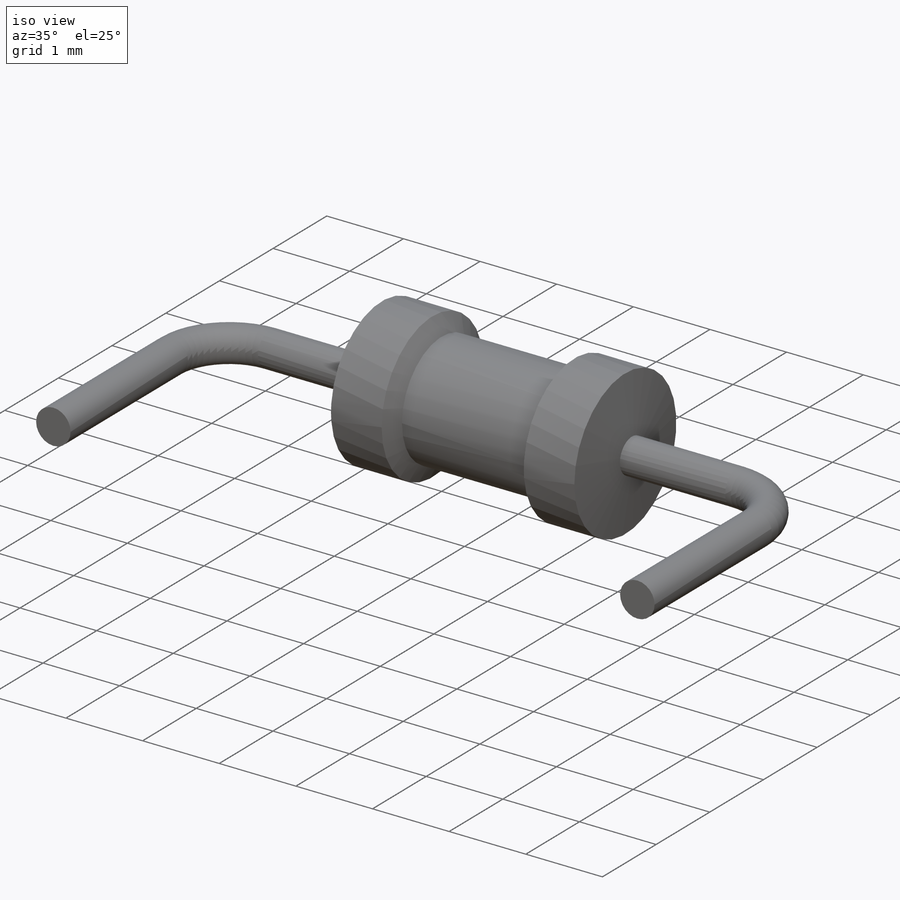
[diagram: iso view]
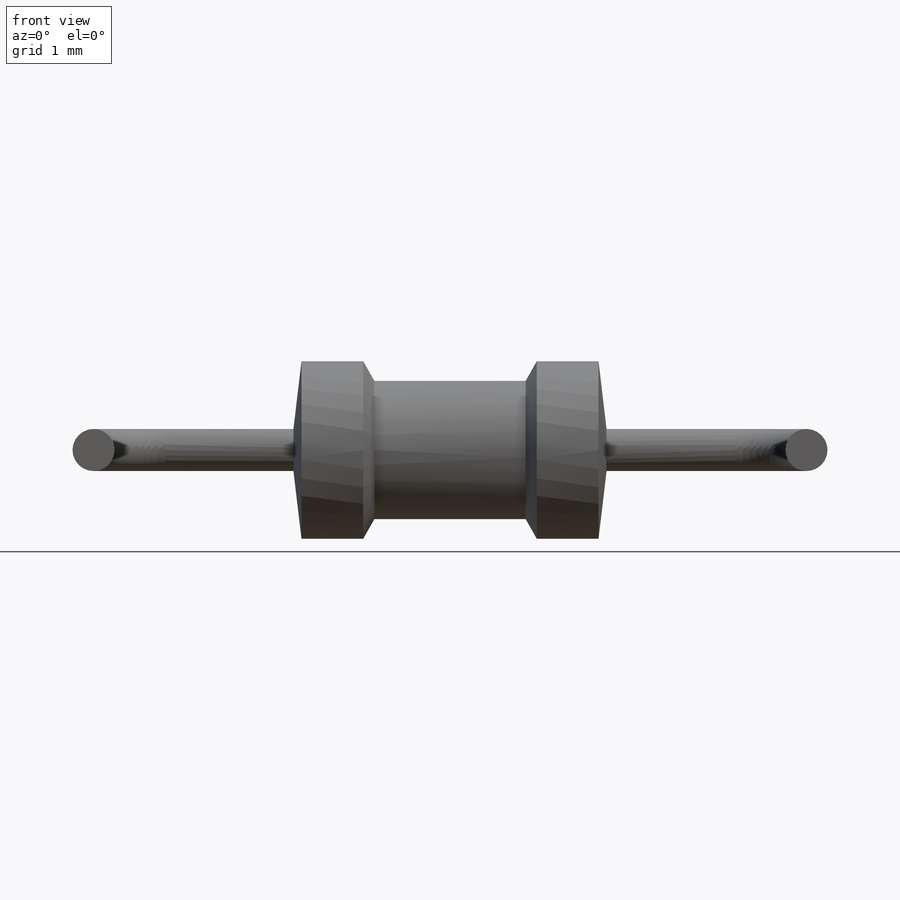
[diagram: front view]
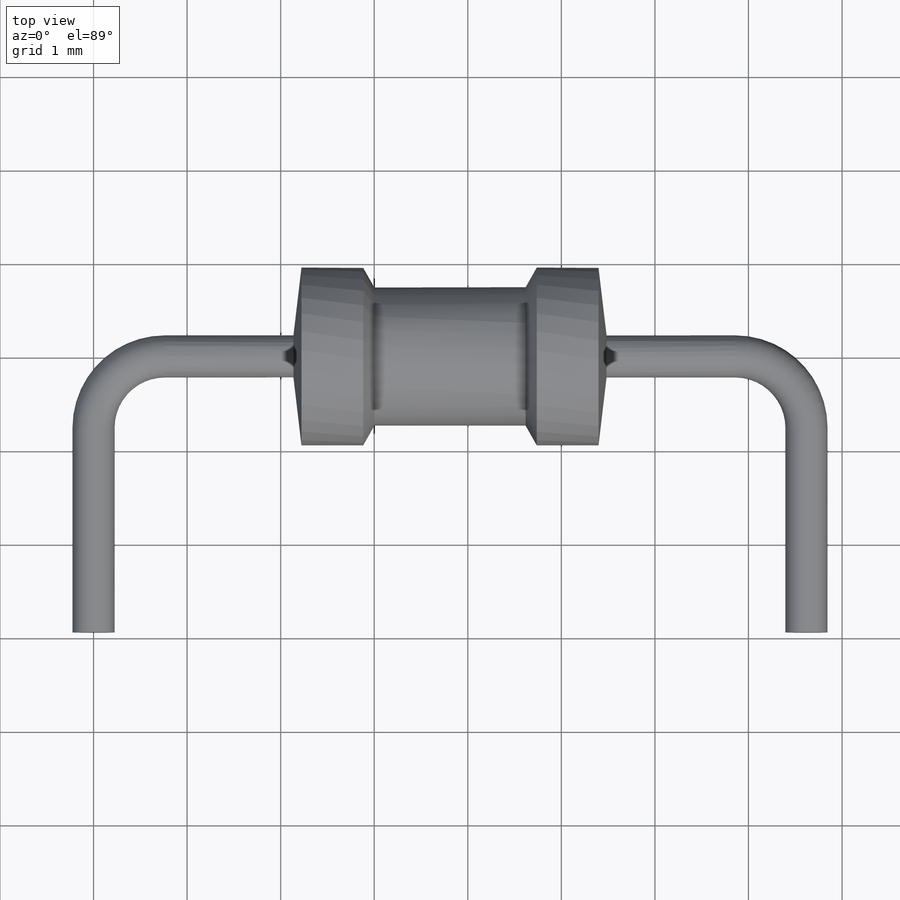
[diagram: top view]
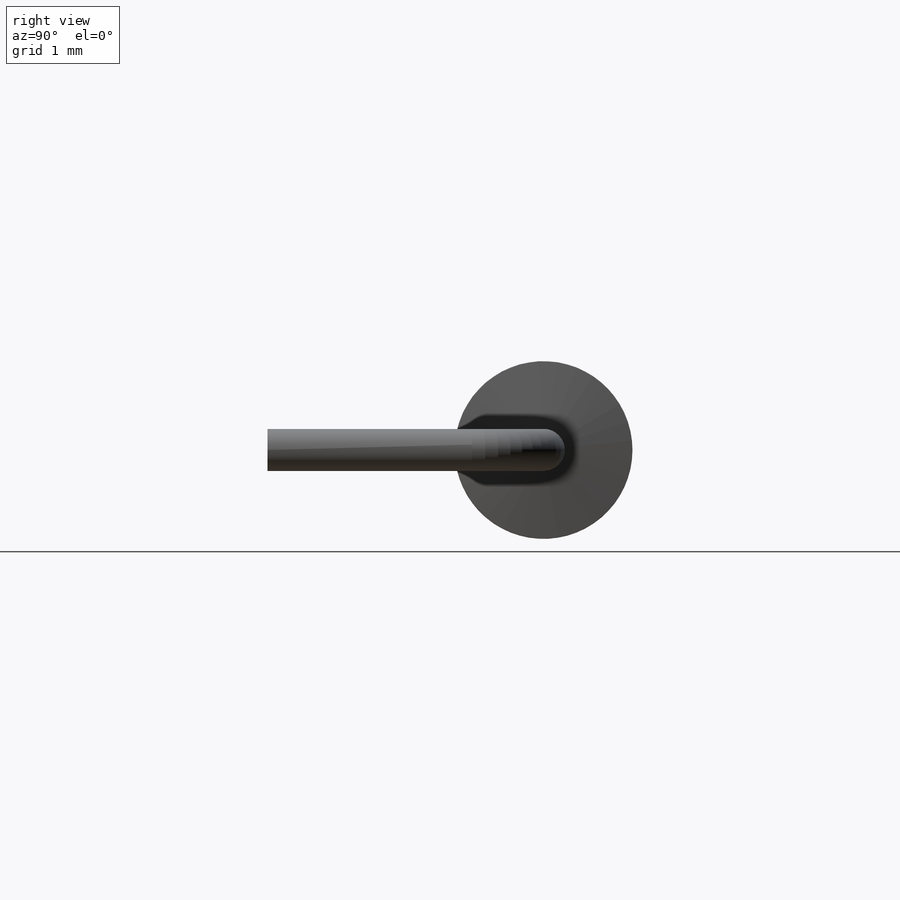
[diagram: right view]
SOLIDWORKS PART (.sldprt)
format: sldprt  version: not decoded by parser v0  size: 218,112 bytes
history: native  units: mm
features: sketch x5, plane x4, material x1, revolve x1, sweep x1, extrude x1 (+13 scaffold rows collapsed)
feature tree (26):
  scaffold x13  (default folders/planes/origin — collapsed)
  material  "Material <not specified>"
  sketch  "Sketch1"  dims[D1=7.62mm D2=3.4mm D3=0.95mm D4=0.6604mm D5=0.6604mm]
  revolve  "Revolve1"  Angle=360deg
  plane  "Plane1"  Offset=0.95mm
  plane  "Plane2"
  plane  "Plane3"
  plane  "Plane4"
  sketch  "Sketch3"  dims[D2=0.762mm D3=0.762mm D1=7.62mm D4=~1.460309mm D5=0.188mm]
  sketch  "Sketch4"  dims[D1=0.45mm]
  sketch  "Sketch5"  dims[D1=0.45mm]
  sweep  "Sweep4"
  sketch  "Sketch6"
  extrude  "Boss-Extrude2"  Depth=2mm
decode coverage: 6 of 8 modeling features carry decoded parameters
note: ~ marks probable driven/reference dimensions
note: suppression state not decoded; provenance and decode notes live in map.json
